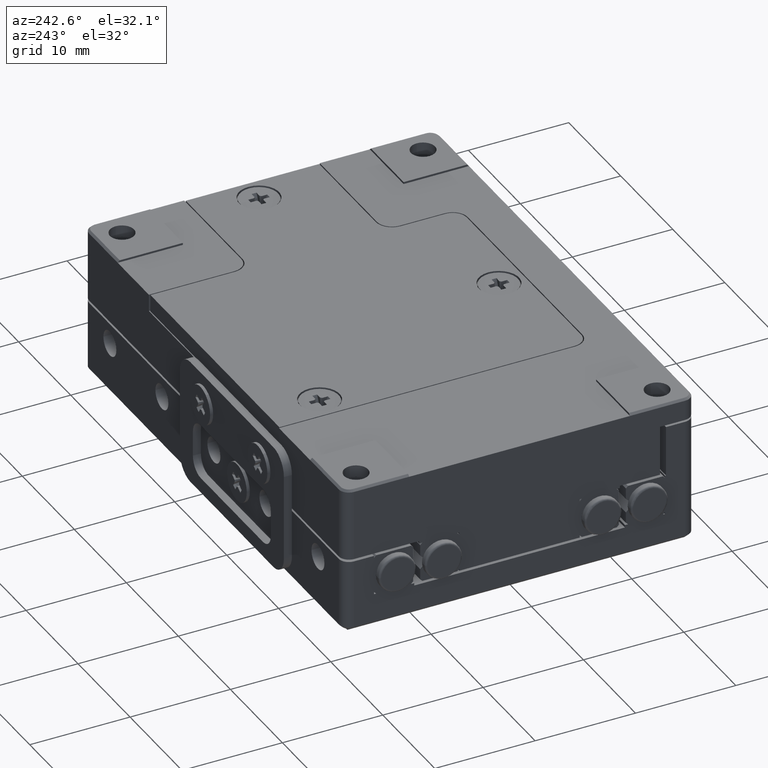
[diagram: clean part render]
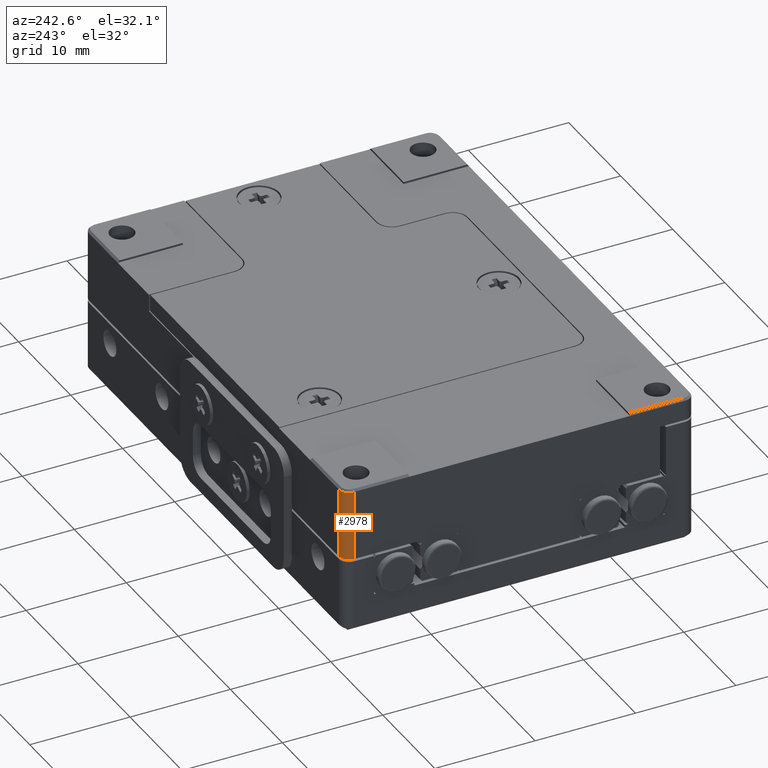
[diagram: same view with one face highlighted and labeled with its STEP entity id]
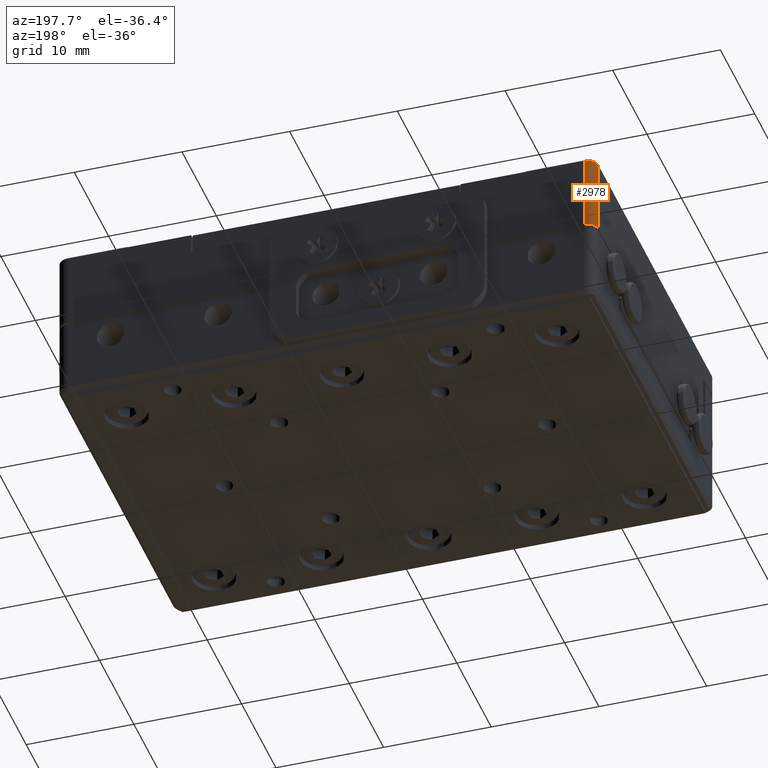
[diagram: same view with one face highlighted and labeled with its STEP entity id]
A machine part, auxiliary view. The second image highlights one B-rep face of the part: STEP entity #2978.
A second angle (auxiliary view) of the same face is appended — the face is thin or edge-on in the first view.
In plain terms, the highlighted cylindrical surface (edge-blend (fillet) strip) has radius 1 mm, axis along (0, 0, -1).
Its self-contained STEP definition (entity closure, byte-faithful):
#68 = DIRECTION ( 'NONE',  ( -1.000000000000000000, 0.000000000000000000, 0.000000000000000000 ) ) ;
#540 = VERTEX_POINT ( 'NONE', #1010 ) ;
#1010 = CARTESIAN_POINT ( 'NONE',  ( -21.36842105263155034, 12.95546558704454121, 4.250000000000000000 ) ) ;
#1115 = CARTESIAN_POINT ( 'NONE',  ( -21.36842105263155034, 11.95546558704453943, 11.25000000000000000 ) ) ;
#1804 = CIRCLE ( 'NONE', #8684, 1.000000000000000888 ) ;
#2215 = CARTESIAN_POINT ( 'NONE',  ( -22.36842105263154679, 11.95546558704453943, 11.25000000000000000 ) ) ;
#2445 = ORIENTED_EDGE ( 'NONE', *, *, #10778, .F. ) ;
#2978 = ADVANCED_FACE ( 'NONE', ( #6375 ), #10628, .T. ) ;
#3401 = CARTESIAN_POINT ( 'NONE',  ( -22.36842105263154679, 11.95546558704453943, 4.250000000000000000 ) ) ;
#4154 = ORIENTED_EDGE ( 'NONE', *, *, #9717, .F. ) ;
#4740 = VERTEX_POINT ( 'NONE', #7824 ) ;
#5133 = ORIENTED_EDGE ( 'NONE', *, *, #13396, .T. ) ;
#5670 = CARTESIAN_POINT ( 'NONE',  ( -21.36842105263155034, 12.95546558704454121, 11.25000000000000000 ) ) ;
#6375 = FACE_OUTER_BOUND ( 'NONE', #10709, .T. ) ;
#6771 = DIRECTION ( 'NONE',  ( 0.000000000000000000, 0.000000000000000000, 1.000000000000000000 ) ) ;
#7088 = CARTESIAN_POINT ( 'NONE',  ( -21.36842105263155034, 11.95546558704453943, 11.25000000000000000 ) ) ;
#7556 = CARTESIAN_POINT ( 'NONE',  ( -21.36842105263155034, 11.95546558704453943, 4.250000000000000000 ) ) ;
#7824 = CARTESIAN_POINT ( 'NONE',  ( -22.36842105263154679, 11.95546558704453943, 11.25000000000000000 ) ) ;
#8066 = DIRECTION ( 'NONE',  ( -1.000000000000000000, 0.000000000000000000, 0.000000000000000000 ) ) ;
#8390 = CARTESIAN_POINT ( 'NONE',  ( -21.36842105263155034, 12.95546558704454121, 11.25000000000000000 ) ) ;
#8684 = AXIS2_PLACEMENT_3D ( 'NONE', #7088, #10367, #8066 ) ;
#8758 = DIRECTION ( 'NONE',  ( -1.000000000000000000, 0.000000000000000000, 0.000000000000000000 ) ) ;
#9592 = DIRECTION ( 'NONE',  ( 0.000000000000000000, 0.000000000000000000, -1.000000000000000000 ) ) ;
#9717 = EDGE_CURVE ( 'NONE', #10278, #540, #13086, .T. ) ;
#9872 = DIRECTION ( 'NONE',  ( 0.000000000000000000, 0.000000000000000000, -1.000000000000000000 ) ) ;
#10106 = VECTOR ( 'NONE', #6771, 1000.000000000000000 ) ;
#10278 = VERTEX_POINT ( 'NONE', #3401 ) ;
#10345 = DIRECTION ( 'NONE',  ( 0.000000000000000000, 0.000000000000000000, -1.000000000000000000 ) ) ;
#10367 = DIRECTION ( 'NONE',  ( 0.000000000000000000, 0.000000000000000000, -1.000000000000000000 ) ) ;
#10484 = LINE ( 'NONE', #2215, #12367 ) ;
#10540 = VERTEX_POINT ( 'NONE', #8390 ) ;
#10628 = CYLINDRICAL_SURFACE ( 'NONE', #10782, 1.000000000000000888 ) ;
#10709 = EDGE_LOOP ( 'NONE', ( #11623, #5133, #2445, #4154 ) ) ;
#10778 = EDGE_CURVE ( 'NONE', #540, #10540, #13187, .T. ) ;
#10782 = AXIS2_PLACEMENT_3D ( 'NONE', #1115, #9592, #68 ) ;
#11522 = AXIS2_PLACEMENT_3D ( 'NONE', #7556, #9872, #8758 ) ;
#11623 = ORIENTED_EDGE ( 'NONE', *, *, #11860, .F. ) ;
#11860 = EDGE_CURVE ( 'NONE', #4740, #10278, #10484, .T. ) ;
#12367 = VECTOR ( 'NONE', #10345, 1000.000000000000000 ) ;
#13086 = CIRCLE ( 'NONE', #11522, 1.000000000000000888 ) ;
#13187 = LINE ( 'NONE', #5670, #10106 ) ;
#13396 = EDGE_CURVE ( 'NONE', #4740, #10540, #1804, .T. ) ;